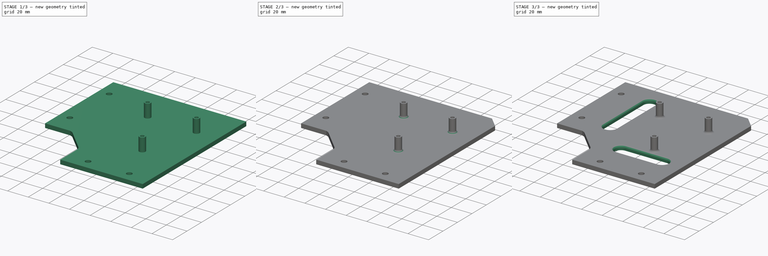
[diagram: build sequence overview — one tinted view per stage of 3, left to right]
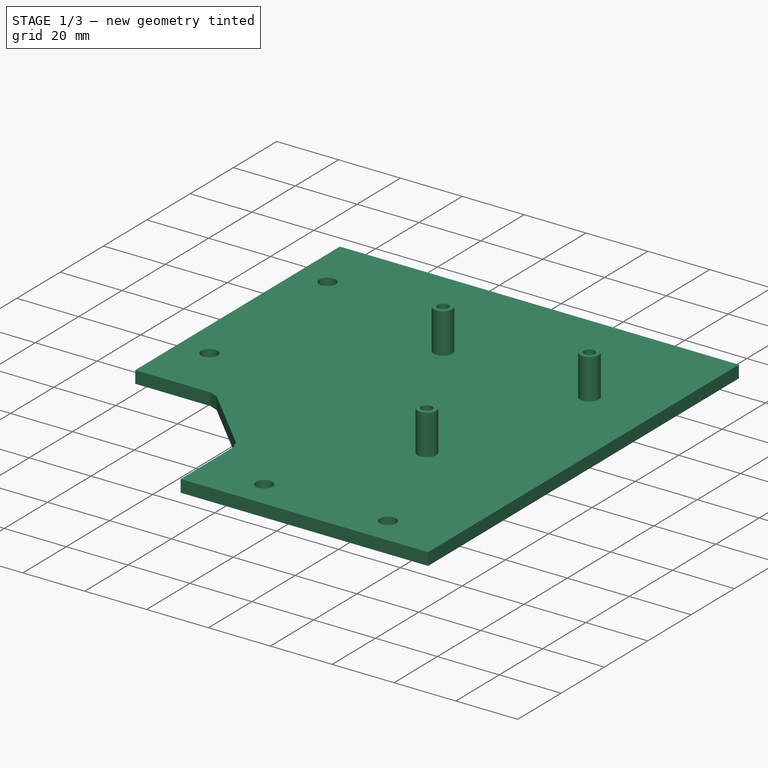
[diagram: stage 1 of 3 — iso view after this stage's code; geometry added in this stage tinted green]
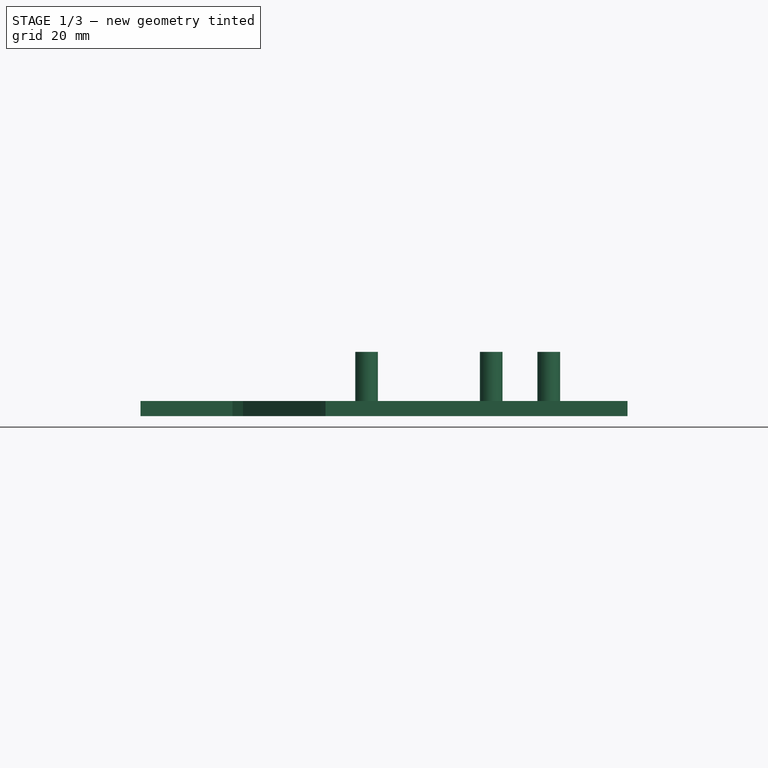
[diagram: stage 1 of 3 — front view after this stage's code; geometry added in this stage tinted green]
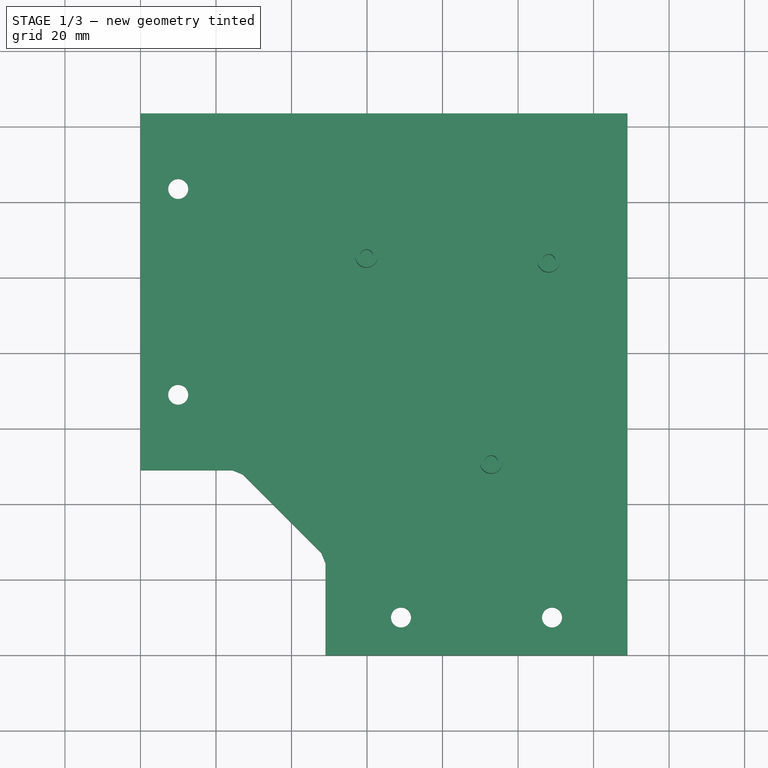
[diagram: stage 1 of 3 — top view after this stage's code; geometry added in this stage tinted green]
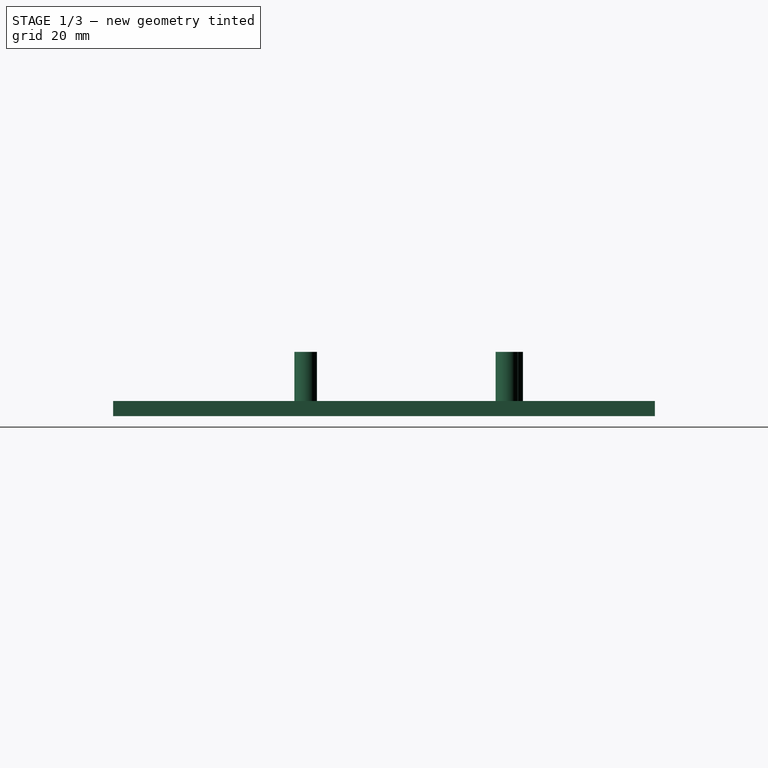
[diagram: stage 1 of 3 — right view after this stage's code; geometry added in this stage tinted green]
FCSTD DOCUMENT  (FreeCAD 1.0R39109 (Git))
Label: stm_mount
License: All rights reserved
LicenseURL: https://en.wikipedia.org/wiki/All_rights_reserved
objects: Sketcher::SketchObject×4, PartDesign::Pad×2, PartDesign::Fillet×2, PartDesign::Chamfer×1, PartDesign::Pocket×1, PartDesign::Body×1
note: 27 computed .brp shape members not serialized (recipe doc carries the construction recipe); baked Part::Feature solids carry a one-line shape summary decoded from their .brp

FEATURE [Sketcher::SketchObject] Sketch
  ArcFitTolerance = 1e-06
  AttachmentSupport = -> [XY_Plane]
  FullyConstrained = true
  MakeInternals = false
  MapMode = 5
  sketch-geometry (47):
    g0: LineSegment [constr] StartX=0 StartY=0 StartZ=0 EndX=49 EndY=0 EndZ=0
    g1: LineSegment [constr] StartX=0 StartY=0 StartZ=0 EndX=0 EndY=49 EndZ=0
    g2: LineSegment StartX=0 StartY=49 StartZ=0 EndX=24.3764 EndY=49 EndZ=0
    g3: LineSegment StartX=49 StartY=0 StartZ=0 EndX=49 EndY=24.3764 EndZ=0
    g4: LineSegment StartX=47.8519 StartY=27.1481 StartZ=0 EndX=27.1481 EndY=47.8519 EndZ=0
    g5: ArcOfCircle [constr] CenterX=24.3764 CenterY=45.0803 CenterZ=0 NormalX=0 NormalY=0 NormalZ=1 AngleXU=0 Radius=3.91969 StartAngle=0.785398 EndAngle=1.5708
    g6: GeomPoint [constr] X=26 Y=49 Z=0
    g7: LineSegment StartX=27.1481 StartY=47.8519 StartZ=0 EndX=24.3764 EndY=49 EndZ=0
    g8: ArcOfCircle [constr] CenterX=45.0803 CenterY=24.3764 CenterZ=0 NormalX=0 NormalY=0 NormalZ=1 AngleXU=0 Radius=3.91969 StartAngle=0 EndAngle=0.785398
    g9: GeomPoint [constr] X=49 Y=26 Z=0
    g10: LineSegment StartX=49 StartY=24.3764 StartZ=0 EndX=47.8519 EndY=27.1481 EndZ=0
    g11: LineSegment StartX=49 StartY=0 StartZ=0 EndX=129 EndY=0 EndZ=0
    g12: LineSegment [constr] StartX=0 StartY=0 StartZ=0 EndX=49 EndY=0 EndZ=0
    g13: LineSegment [constr] StartX=49 StartY=0 StartZ=0 EndX=49 EndY=49 EndZ=0
    g14: LineSegment [constr] StartX=49 StartY=49 StartZ=0 EndX=0 EndY=49 EndZ=0
    g15: LineSegment [constr] StartX=0 StartY=49 StartZ=0 EndX=0 EndY=0 EndZ=0
    g16: LineSegment [constr] StartX=49 StartY=49 StartZ=0 EndX=119 EndY=49 EndZ=0
    g17: LineSegment [constr] StartX=119 StartY=49 StartZ=0 EndX=119 EndY=133.5 EndZ=0
    g18: LineSegment [constr] StartX=119 StartY=133.5 StartZ=0 EndX=49 EndY=133.5 EndZ=0
    g19: LineSegment [constr] StartX=49 StartY=133.5 StartZ=0 EndX=49 EndY=49 EndZ=0
    g20: LineSegment [constr] StartX=119 StartY=133.5 StartZ=0 EndX=129 EndY=133.5 EndZ=0
    g21: LineSegment [constr] StartX=129 StartY=133.5 StartZ=0 EndX=129 EndY=143.5 EndZ=0
    g22: LineSegment [constr] StartX=129 StartY=143.5 StartZ=0 EndX=119 EndY=143.5 EndZ=0
    g23: LineSegment [constr] StartX=119 StartY=143.5 StartZ=0 EndX=119 EndY=133.5 EndZ=0
    g24: LineSegment StartX=129 StartY=143.5 StartZ=0 EndX=129 EndY=0 EndZ=0
    g25: LineSegment StartX=129 StartY=143.5 StartZ=0 EndX=0 EndY=143.5 EndZ=0
    g26: LineSegment StartX=0 StartY=143.5 StartZ=0 EndX=0 EndY=49 EndZ=0
    g27: LineSegment [constr] StartX=49 StartY=0 StartZ=0 EndX=69 EndY=0 EndZ=0
    g28: LineSegment [constr] StartX=69 StartY=0 StartZ=0 EndX=69 EndY=10 EndZ=0
    g29: LineSegment [constr] StartX=69 StartY=10 StartZ=0 EndX=49 EndY=10 EndZ=0
    g30: LineSegment [constr] StartX=49 StartY=10 StartZ=0 EndX=49 EndY=0 EndZ=0
    g31: LineSegment [constr] StartX=129 StartY=0 StartZ=0 EndX=129 EndY=10 EndZ=0
    g32: LineSegment [constr] StartX=129 StartY=10 StartZ=0 EndX=109 EndY=10 EndZ=0
    g33: LineSegment [constr] StartX=109 StartY=10 StartZ=0 EndX=109 EndY=0 EndZ=0
    g34: LineSegment [constr] StartX=109 StartY=0 StartZ=0 EndX=129 EndY=0 EndZ=0
    g35: LineSegment [constr] StartX=0 StartY=49 StartZ=0 EndX=10 EndY=49 EndZ=0
    g36: LineSegment [constr] StartX=10 StartY=49 StartZ=0 EndX=10 EndY=69 EndZ=0
    g37: LineSegment [constr] StartX=10 StartY=69 StartZ=0 EndX=0 EndY=69 EndZ=0
    g38: LineSegment [constr] StartX=0 StartY=69 StartZ=0 EndX=0 EndY=49 EndZ=0
    g39: LineSegment [constr] StartX=0 StartY=143.5 StartZ=0 EndX=0 EndY=123.5 EndZ=0
    g40: LineSegment [constr] StartX=0 StartY=123.5 StartZ=0 EndX=10 EndY=123.5 EndZ=0
    g41: LineSegment [constr] StartX=10 StartY=123.5 StartZ=0 EndX=10 EndY=143.5 EndZ=0
    g42: LineSegment [constr] StartX=10 StartY=143.5 StartZ=0 EndX=0 EndY=143.5 EndZ=0
    g43: Circle CenterX=10 CenterY=123.5 CenterZ=0 NormalX=0 NormalY=0 NormalZ=1 AngleXU=0 Radius=2.65
    g44: Circle CenterX=10 CenterY=69 CenterZ=0 NormalX=0 NormalY=0 NormalZ=1 AngleXU=0 Radius=2.65
    g45: Circle CenterX=69 CenterY=10 CenterZ=0 NormalX=0 NormalY=0 NormalZ=1 AngleXU=0 Radius=2.65
    g46: Circle CenterX=109 CenterY=10 CenterZ=0 NormalX=0 NormalY=0 NormalZ=1 AngleXU=0 Radius=2.65
  constraints (121):
    c: Distance(g0) = 49
    c: Coincident(g0,g-1)
    c: PointOnObject(g0,g-1)
    c: Distance(g1) = 49
    c: Coincident(g1,g0)
    c: PointOnObject(g1,g-2)
    c: Distance(g2,g6) = 26
    c: Coincident(g2,g1)
    c: Horizontal(g2)
    c: Distance(g3,g9) = 26
    c: Coincident(g3,g0)
    c: Vertical(g3)
    c: PointOnObject(g6,g4)
    c: PointOnObject(g6,g2)
    c: Tangent(g4,g5) = -1.5708
    c: Tangent(g2,g5) = 1.5708
    c: Coincident(g7,g4)
    c: Coincident(g7,g2)
    c: PointOnObject(g9,g3)
    c: PointOnObject(g9,g4)
    c: Tangent(g3,g8) = -1.5708
    c: Tangent(g4,g8) = -1.5708
    c: Coincident(g10,g3)
    c: Coincident(g10,g4)
    c: Distance(g7,g7) = 3
    c: Distance(g10,g10) = 3
    c: Distance(g11) = 80
    c: Coincident(g11,g0)
    c: PointOnObject(g11,g-1)
    c: Coincident(g12,g13)
    c: Coincident(g13,g14)
    c: Coincident(g14,g15)
    c: Coincident(g15,g12)
    c: Horizontal(g12)
    c: Horizontal(g14)
    c: Vertical(g13)
    c: Vertical(g15)
    c: Distance(g13,g15) = 49
    c: Distance(g12,g14) = 49
    c: Coincident(g12,g0)
    c: Coincident(g16,g17)
    c: Coincident(g17,g18)
    c: Coincident(g18,g19)
    c: Coincident(g19,g16)
    c: Horizontal(g16)
    c: Horizontal(g18)
    c: Vertical(g17)
    c: Vertical(g19)
    c: Distance(g17,g19) = 70
    c: Distance(g16,g18) = 84.5
    c: Coincident(g16,g13)
    c: Coincident(g20,g21)
    c: Coincident(g21,g22)
    c: Coincident(g22,g23)
    c: Coincident(g23,g20)
    c: Horizontal(g20)
    c: Horizontal(g22)
    c: Vertical(g21)
    c: Vertical(g23)
    c: Distance(g21,g23) = 10
    c: Distance(g20,g22) = 10
    c: Coincident(g20,g17)
    c: Coincident(g24,g21)
    c: Coincident(g24,g11)
    c: Coincident(g25,g21)
    c: PointOnObject(g25,g-2)
    c: Horizontal(g25)
    c: Coincident(g26,g25)
    c: Coincident(g26,g1)
    c: Coincident(g27,g28)
    c: Coincident(g28,g29)
    c: Coincident(g29,g30)
    c: Coincident(g30,g27)
    c: Horizontal(g27)
    c: Horizontal(g29)
    c: Vertical(g28)
    c: Vertical(g30)
    c: Distance(g28,g30) = 20
    c: Distance(g27,g29) = 10
    c: Coincident(g27,g0)
    c: Coincident(g31,g32)
    c: Coincident(g32,g33)
    c: Coincident(g33,g34)
    c: Coincident(g34,g31)
    c: Vertical(g31)
    c: Vertical(g33)
    c: Horizontal(g32)
    c: Horizontal(g34)
    c: Distance(g31,g33) = 20
    c: Distance(g32,g34) = 10
    c: Coincident(g31,g11)
    c: Coincident(g35,g36)
    c: Coincident(g36,g37)
    c: Coincident(g37,g38)
    c: Coincident(g38,g35)
    c: Horizontal(g35)
    c: Horizontal(g37)
    c: Vertical(g36)
    c: Vertical(g38)
    c: Distance(g36,g38) = 10
    c: Distance(g35,g37) = 20
    c: Coincident(g35,g1)
    c: Coincident(g39,g40)
    c: Coincident(g40,g41)
    c: Coincident(g41,g42)
    c: Coincident(g42,g39)
    c: Vertical(g39)
    c: Vertical(g41)
    c: Horizontal(g40)
    c: Horizontal(g42)
    c: Distance(g39,g41) = 10
    c: Distance(g40,g42) = 20
    c: Coincident(g39,g25)
    c: Diameter(g43) = 5.3
    c: Coincident(g43,g40)
    c: Diameter(g44) = 5.3
    c: Coincident(g44,g36)
    c: Diameter(g45) = 5.3
    c: Coincident(g45,g28)
    c: Diameter(g46) = 5.3
    c: Coincident(g46,g32)
FEATURE [PartDesign::Pad] Pad
  Direction = (0,0,1)
  Length = 4
  Length2 = 10
  Profile = -> Sketch
  ReferenceAxis = -> Sketch [N_Axis]
  Refine = true
  Reversed = true
  Suppressed = false
  Type = 0
FEATURE [Sketcher::SketchObject] Sketch001
  ArcFitTolerance = 1e-06
  AttachmentSupport = -> [Pad]
  FullyConstrained = true
  MakeInternals = false
  MapMode = 5
  sketch-geometry (65):
    g0: LineSegment [constr] StartX=0 StartY=0 StartZ=0 EndX=49 EndY=0 EndZ=0
    g1: LineSegment [constr] StartX=0 StartY=0 StartZ=0 EndX=0 EndY=49 EndZ=0
    g2: LineSegment [constr] StartX=0 StartY=49 StartZ=0 EndX=24.3764 EndY=49 EndZ=0
    g3: LineSegment [constr] StartX=49 StartY=0 StartZ=0 EndX=49 EndY=24.3764 EndZ=0
    g4: LineSegment [constr] StartX=47.8519 StartY=27.1481 StartZ=0 EndX=27.1481 EndY=47.8519 EndZ=0
    g5: ArcOfCircle [constr] CenterX=24.3764 CenterY=45.0803 CenterZ=0 NormalX=0 NormalY=0 NormalZ=1 AngleXU=0 Radius=3.91969 StartAngle=0.785398 EndAngle=1.5708
    g6: GeomPoint [constr] X=26 Y=49 Z=0
    g7: LineSegment [constr] StartX=27.1481 StartY=47.8519 StartZ=0 EndX=24.3764 EndY=49 EndZ=0
    g8: ArcOfCircle [constr] CenterX=45.0803 CenterY=24.3764 CenterZ=0 NormalX=0 NormalY=0 NormalZ=1 AngleXU=0 Radius=3.91969 StartAngle=0 EndAngle=0.785398
    g9: GeomPoint [constr] X=49 Y=26 Z=0
    g10: LineSegment [constr] StartX=49 StartY=24.3764 StartZ=0 EndX=47.8519 EndY=27.1481 EndZ=0
    g11: LineSegment [constr] StartX=49 StartY=0 StartZ=0 EndX=129 EndY=0 EndZ=0
    g12: LineSegment [constr] StartX=0 StartY=0 StartZ=0 EndX=49 EndY=0 EndZ=0
    g13: LineSegment [constr] StartX=49 StartY=0 StartZ=0 EndX=49 EndY=49 EndZ=0
    g14: LineSegment [constr] StartX=49 StartY=49 StartZ=0 EndX=0 EndY=49 EndZ=0
    g15: LineSegment [constr] StartX=0 StartY=49 StartZ=0 EndX=0 EndY=0 EndZ=0
    g16: LineSegment [constr] StartX=49 StartY=49 StartZ=0 EndX=119 EndY=49 EndZ=0
    g17: LineSegment [constr] StartX=119 StartY=49 StartZ=0 EndX=119 EndY=133.5 EndZ=0
    g18: LineSegment [constr] StartX=119 StartY=133.5 StartZ=0 EndX=49 EndY=133.5 EndZ=0
    g19: LineSegment [constr] StartX=49 StartY=133.5 StartZ=0 EndX=49 EndY=49 EndZ=0
    g20: LineSegment [constr] StartX=119 StartY=133.5 StartZ=0 EndX=129 EndY=133.5 EndZ=0
    g21: LineSegment [constr] StartX=129 StartY=133.5 StartZ=0 EndX=129 EndY=143.5 EndZ=0
    g22: LineSegment [constr] StartX=129 StartY=143.5 StartZ=0 EndX=119 EndY=143.5 EndZ=0
    g23: LineSegment [constr] StartX=119 StartY=143.5 StartZ=0 EndX=119 EndY=133.5 EndZ=0
    g24: LineSegment [constr] StartX=129 StartY=143.5 StartZ=0 EndX=129 EndY=0 EndZ=0
    g25: LineSegment [constr] StartX=129 StartY=143.5 StartZ=0 EndX=0 EndY=143.5 EndZ=0
    g26: LineSegment [constr] StartX=0 StartY=143.5 StartZ=0 EndX=0 EndY=49 EndZ=0
    g27: LineSegment [constr] StartX=49 StartY=0 StartZ=0 EndX=69 EndY=0 EndZ=0
    g28: LineSegment [constr] StartX=69 StartY=0 StartZ=0 EndX=69 EndY=10 EndZ=0
    g29: LineSegment [constr] StartX=69 StartY=10 StartZ=0 EndX=49 EndY=10 EndZ=0
    g30: LineSegment [constr] StartX=49 StartY=10 StartZ=0 EndX=49 EndY=0 EndZ=0
    g31: LineSegment [constr] StartX=129 StartY=0 StartZ=0 EndX=129 EndY=10 EndZ=0
    g32: LineSegment [constr] StartX=129 StartY=10 StartZ=0 EndX=109 EndY=10 EndZ=0
    g33: LineSegment [constr] StartX=109 StartY=10 StartZ=0 EndX=109 EndY=0 EndZ=0
    g34: LineSegment [constr] StartX=109 StartY=0 StartZ=0 EndX=129 EndY=0 EndZ=0
    g35: LineSegment [constr] StartX=0 StartY=49 StartZ=0 EndX=10 EndY=49 EndZ=0
    g36: LineSegment [constr] StartX=10 StartY=49 StartZ=0 EndX=10 EndY=69 EndZ=0
    g37: LineSegment [constr] StartX=10 StartY=69 StartZ=0 EndX=0 EndY=69 EndZ=0
    g38: LineSegment [constr] StartX=0 StartY=69 StartZ=0 EndX=0 EndY=49 EndZ=0
    g39: LineSegment [constr] StartX=0 StartY=143.5 StartZ=0 EndX=0 EndY=123.5 EndZ=0
    g40: LineSegment [constr] StartX=0 StartY=123.5 StartZ=0 EndX=10 EndY=123.5 EndZ=0
    g41: LineSegment [constr] StartX=10 StartY=123.5 StartZ=0 EndX=10 EndY=143.5 EndZ=0
    g42: LineSegment [constr] StartX=10 StartY=143.5 StartZ=0 EndX=0 EndY=143.5 EndZ=0
    g43: Circle [constr] CenterX=10 CenterY=123.5 CenterZ=0 NormalX=0 NormalY=0 NormalZ=1 AngleXU=0 Radius=2.65
    g44: Circle [constr] CenterX=10 CenterY=69 CenterZ=0 NormalX=0 NormalY=0 NormalZ=1 AngleXU=0 Radius=2.65
    g45: Circle [constr] CenterX=69 CenterY=10 CenterZ=0 NormalX=0 NormalY=0 NormalZ=1 AngleXU=0 Radius=2.65
    g46: Circle [constr] CenterX=109 CenterY=10 CenterZ=0 NormalX=0 NormalY=0 NormalZ=1 AngleXU=0 Radius=2.65
    g47: LineSegment [constr] StartX=49 StartY=133.5 StartZ=0 EndX=49 EndY=105.57 EndZ=0
    g48: LineSegment [constr] StartX=49 StartY=105.57 StartZ=0 EndX=59.87 EndY=105.57 EndZ=0
    g49: LineSegment [constr] StartX=59.87 StartY=105.57 StartZ=0 EndX=59.87 EndY=133.5 EndZ=0
    g50: LineSegment [constr] StartX=59.87 StartY=133.5 StartZ=0 EndX=49 EndY=133.5 EndZ=0
    g51: LineSegment [constr] StartX=119 StartY=133.5 StartZ=0 EndX=108.13 EndY=133.5 EndZ=0
    g52: LineSegment [constr] StartX=108.13 StartY=133.5 StartZ=0 EndX=108.13 EndY=104.3 EndZ=0
    g53: LineSegment [constr] StartX=108.13 StartY=104.3 StartZ=0 EndX=119 EndY=104.3 EndZ=0
    g54: LineSegment [constr] StartX=119 StartY=104.3 StartZ=0 EndX=119 EndY=133.5 EndZ=0
    g55: LineSegment [constr] StartX=119 StartY=49 StartZ=0 EndX=119 EndY=51 EndZ=0
    g56: LineSegment [constr] StartX=119 StartY=51 StartZ=0 EndX=92.89 EndY=51 EndZ=0
    g57: LineSegment [constr] StartX=92.89 StartY=51 StartZ=0 EndX=92.89 EndY=49 EndZ=0
    g58: LineSegment [constr] StartX=92.89 StartY=49 StartZ=0 EndX=119 EndY=49 EndZ=0
    g59: Circle CenterX=59.87 CenterY=105.57 CenterZ=0 NormalX=0 NormalY=0 NormalZ=1 AngleXU=0 Radius=1.75
    g60: Circle CenterX=108.13 CenterY=104.3 CenterZ=0 NormalX=0 NormalY=0 NormalZ=1 AngleXU=0 Radius=1.75
    g61: Circle CenterX=92.89 CenterY=51 CenterZ=0 NormalX=0 NormalY=0 NormalZ=1 AngleXU=0 Radius=1.75
    g62: Circle CenterX=59.87 CenterY=105.57 CenterZ=0 NormalX=0 NormalY=0 NormalZ=1 AngleXU=0 Radius=3
    g63: Circle CenterX=108.13 CenterY=104.3 CenterZ=0 NormalX=0 NormalY=0 NormalZ=1 AngleXU=0 Radius=3
    g64: Circle CenterX=92.89 CenterY=51 CenterZ=0 NormalX=0 NormalY=0 NormalZ=1 AngleXU=0 Radius=3
  constraints (166):
    c: Distance(g0) = 49
    c: Coincident(g0,g-1)
    c: PointOnObject(g0,g-1)
    c: Distance(g1) = 49
    c: Coincident(g1,g0)
    c: PointOnObject(g1,g-2)
    c: Distance(g2,g6) = 26
    c: Coincident(g2,g1)
    c: Horizontal(g2)
    c: Distance(g3,g9) = 26
    c: Coincident(g3,g0)
    c: Vertical(g3)
    c: PointOnObject(g6,g4)
    c: PointOnObject(g6,g2)
    c: Tangent(g4,g5) = -1.5708
    c: Tangent(g2,g5) = 1.5708
    c: Coincident(g7,g4)
    c: Coincident(g7,g2)
    c: PointOnObject(g9,g3)
    c: PointOnObject(g9,g4)
    c: Tangent(g3,g8) = -1.5708
    c: Tangent(g4,g8) = -1.5708
    c: Coincident(g10,g3)
    c: Coincident(g10,g4)
    c: Distance(g7,g7) = 3
    c: Distance(g10,g10) = 3
    c: Distance(g11) = 80
    c: Coincident(g11,g0)
    c: PointOnObject(g11,g-1)
    c: Coincident(g12,g13)
    c: Coincident(g13,g14)
    c: Coincident(g14,g15)
    c: Coincident(g15,g12)
    c: Horizontal(g12)
    c: Horizontal(g14)
    c: Vertical(g13)
    c: Vertical(g15)
    c: Distance(g13,g15) = 49
    c: Distance(g12,g14) = 49
    c: Coincident(g12,g0)
    c: Coincident(g16,g17)
    c: Coincident(g17,g18)
    c: Coincident(g18,g19)
    c: Coincident(g19,g16)
    c: Horizontal(g16)
    c: Horizontal(g18)
    c: Vertical(g17)
    c: Vertical(g19)
    c: Distance(g17,g19) = 70
    c: Distance(g16,g18) = 84.5
    c: Coincident(g16,g13)
    c: Coincident(g20,g21)
    c: Coincident(g21,g22)
    c: Coincident(g22,g23)
    c: Coincident(g23,g20)
    c: Horizontal(g20)
    c: Horizontal(g22)
    c: Vertical(g21)
    c: Vertical(g23)
    c: Distance(g21,g23) = 10
    c: Distance(g20,g22) = 10
    c: Coincident(g20,g17)
    c: Coincident(g24,g21)
    c: Coincident(g24,g11)
    c: Coincident(g25,g21)
    c: PointOnObject(g25,g-2)
    c: Horizontal(g25)
    c: Coincident(g26,g25)
    c: Coincident(g26,g1)
    c: Coincident(g27,g28)
    c: Coincident(g28,g29)
    c: Coincident(g29,g30)
    c: Coincident(g30,g27)
    c: Horizontal(g27)
    c: Horizontal(g29)
    c: Vertical(g28)
    c: Vertical(g30)
    c: Distance(g28,g30) = 20
    c: Distance(g27,g29) = 10
    c: Coincident(g27,g0)
    c: Coincident(g31,g32)
    c: Coincident(g32,g33)
    c: Coincident(g33,g34)
    c: Coincident(g34,g31)
    c: Vertical(g31)
    c: Vertical(g33)
    c: Horizontal(g32)
    c: Horizontal(g34)
    c: Distance(g31,g33) = 20
    c: Distance(g32,g34) = 10
    c: Coincident(g31,g11)
    c: Coincident(g35,g36)
    c: Coincident(g36,g37)
    c: Coincident(g37,g38)
    c: Coincident(g38,g35)
    c: Horizontal(g35)
    c: Horizontal(g37)
    c: Vertical(g36)
    c: Vertical(g38)
    c: Distance(g36,g38) = 10
    c: Distance(g35,g37) = 20
    c: Coincident(g35,g1)
    c: Coincident(g39,g40)
    c: Coincident(g40,g41)
    c: Coincident(g41,g42)
    c: Coincident(g42,g39)
    c: Vertical(g39)
    c: Vertical(g41)
    c: Horizontal(g40)
    c: Horizontal(g42)
    c: Distance(g39,g41) = 10
    c: Distance(g40,g42) = 20
    c: Coincident(g39,g25)
    c: Diameter(g43) = 5.3
    c: Coincident(g43,g40)
    c: Diameter(g44) = 5.3
    c: Coincident(g44,g36)
    c: Diameter(g45) = 5.3
    c: Coincident(g45,g28)
    c: Diameter(g46) = 5.3
    c: Coincident(g46,g32)
    c: Coincident(g47,g48)
    c: Coincident(g48,g49)
    c: Coincident(g49,g50)
    c: Coincident(g50,g47)
    c: Vertical(g47)
    c: Vertical(g49)
    c: Horizontal(g48)
    c: Horizontal(g50)
    c: Distance(g47,g49) = 10.87
    c: Distance(g48,g50) = 27.93
    c: Coincident(g47,g18)
    c: Coincident(g51,g52)
    c: Coincident(g52,g53)
    c: Coincident(g53,g54)
    c: Coincident(g54,g51)
    c: Horizontal(g51)
    c: Horizontal(g53)
    c: Vertical(g52)
    c: Vertical(g54)
    c: Distance(g52,g54) = 10.87
    c: Distance(g51,g53) = 29.2
    c: Coincident(g51,g17)
    c: Coincident(g55,g56)
    c: Coincident(g56,g57)
    c: Coincident(g57,g58)
    c: Coincident(g58,g55)
    c: Vertical(g55)
    c: Vertical(g57)
    c: Horizontal(g56)
    c: Horizontal(g58)
    c: Distance(g55,g57) = 26.11
    c: Distance(g56,g58) = 2
    c: Coincident(g55,g16)
    c: Diameter(g59) = 3.5
    c: Coincident(g59,g48)
    c: Diameter(g60) = 3.5
    c: Coincident(g60,g52)
    c: Diameter(g61) = 3.5
    c: Coincident(g61,g56)
    c: Diameter(g62) = 6
    c: Coincident(g62,g48)
    c: Diameter(g63) = 6
    c: Coincident(g63,g52)
    c: Diameter(g64) = 6
    c: Coincident(g64,g56)
FEATURE [PartDesign::Pad] Pad001
  BaseFeature = -> Pad
  Direction = (0,0,1)
  Length = 13
  Length2 = 10
  Profile = -> Sketch001
  ReferenceAxis = -> Sketch001 [N_Axis]
  Refine = true
  Suppressed = false
  Type = 0
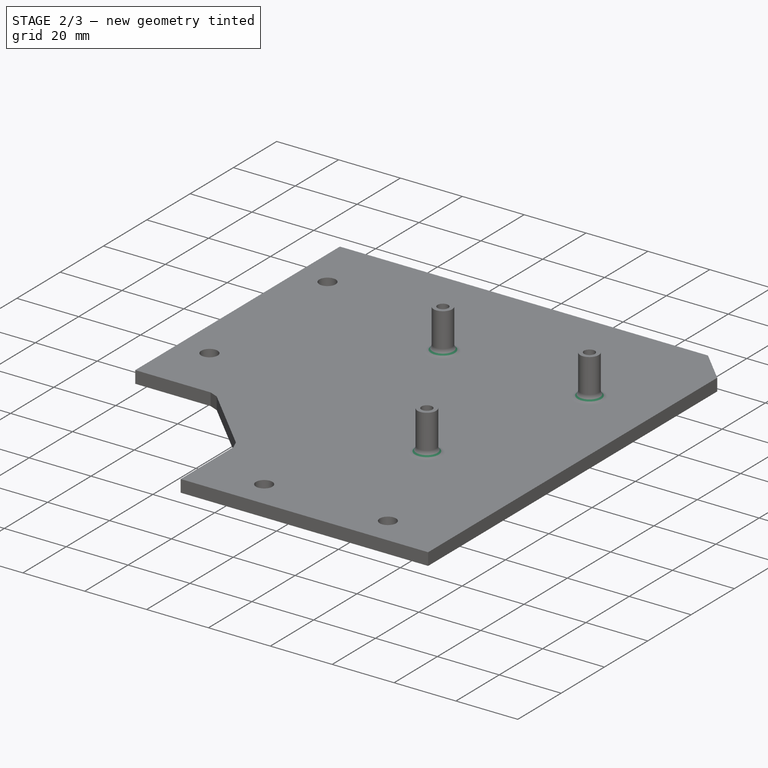
[diagram: stage 2 of 3 — iso view after this stage's code; geometry added in this stage tinted green]
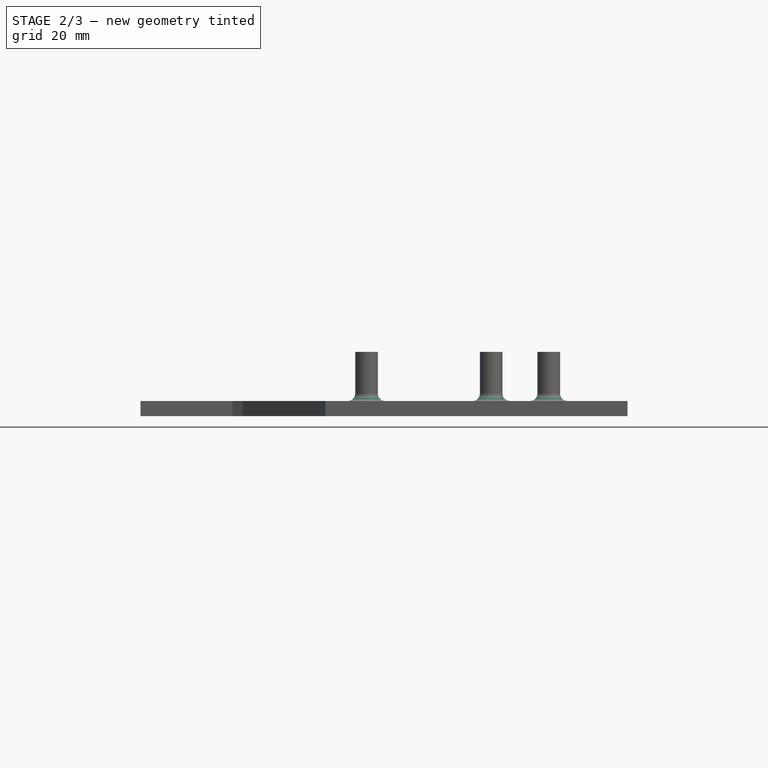
[diagram: stage 2 of 3 — front view after this stage's code; geometry added in this stage tinted green]
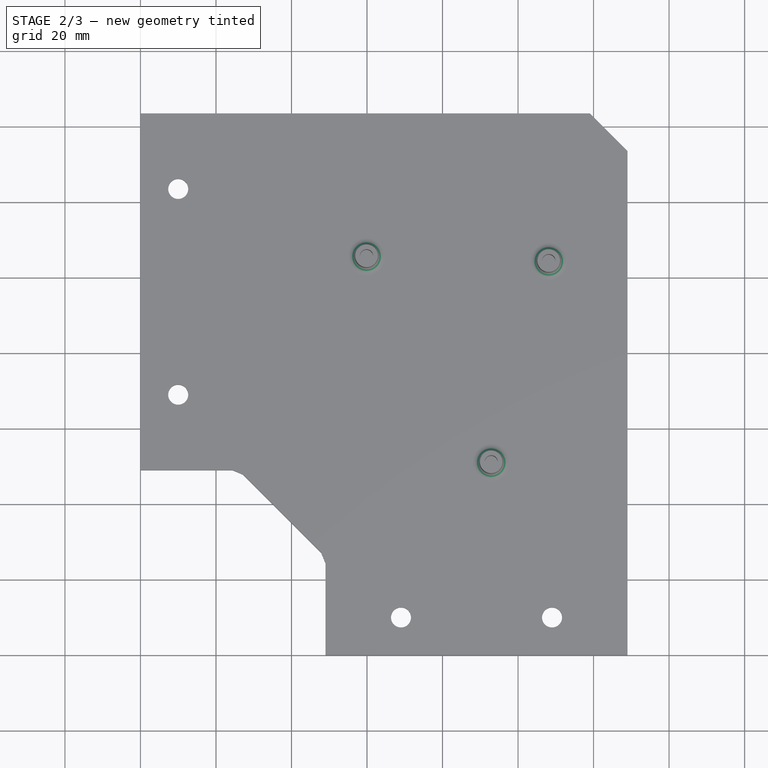
[diagram: stage 2 of 3 — top view after this stage's code; geometry added in this stage tinted green]
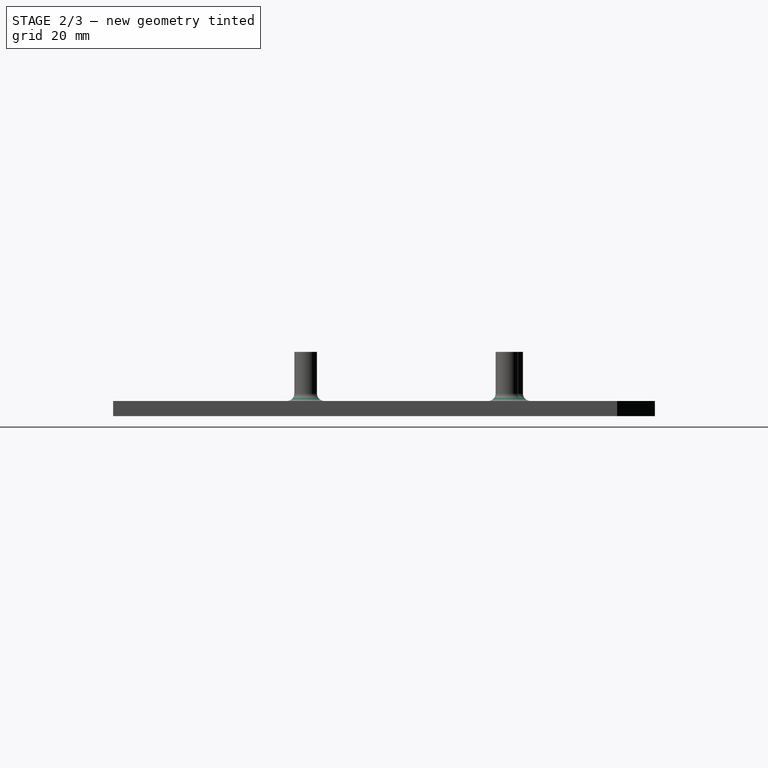
[diagram: stage 2 of 3 — right view after this stage's code; geometry added in this stage tinted green]
FEATURE [Sketcher::SketchObject] Sketch002
  ArcFitTolerance = 1e-06
  AttachmentSupport = -> [Pad001]
  FullyConstrained = true
  MakeInternals = false
  MapMode = 5
  sketch-geometry (65):
    g0: LineSegment [constr] StartX=0 StartY=0 StartZ=0 EndX=49 EndY=0 EndZ=0
    g1: LineSegment [constr] StartX=0 StartY=0 StartZ=0 EndX=0 EndY=49 EndZ=0
    g2: LineSegment [constr] StartX=0 StartY=49 StartZ=0 EndX=24.3764 EndY=49 EndZ=0
    g3: LineSegment [constr] StartX=49 StartY=0 StartZ=0 EndX=49 EndY=24.3764 EndZ=0
    g4: LineSegment [constr] StartX=47.8519 StartY=27.1481 StartZ=0 EndX=27.1481 EndY=47.8519 EndZ=0
    g5: ArcOfCircle [constr] CenterX=24.3764 CenterY=45.0803 CenterZ=0 NormalX=0 NormalY=0 NormalZ=1 AngleXU=0 Radius=3.91969 StartAngle=0.785398 EndAngle=1.5708
    g6: GeomPoint [constr] X=26 Y=49 Z=0
    g7: LineSegment [constr] StartX=27.1481 StartY=47.8519 StartZ=0 EndX=24.3764 EndY=49 EndZ=0
    g8: ArcOfCircle [constr] CenterX=45.0803 CenterY=24.3764 CenterZ=0 NormalX=0 NormalY=0 NormalZ=1 AngleXU=0 Radius=3.91969 StartAngle=0 EndAngle=0.785398
    g9: GeomPoint [constr] X=49 Y=26 Z=0
    g10: LineSegment [constr] StartX=49 StartY=24.3764 StartZ=0 EndX=47.8519 EndY=27.1481 EndZ=0
    g11: LineSegment [constr] StartX=49 StartY=0 StartZ=0 EndX=129 EndY=0 EndZ=0
    g12: LineSegment [constr] StartX=0 StartY=0 StartZ=0 EndX=49 EndY=0 EndZ=0
    g13: LineSegment [constr] StartX=49 StartY=0 StartZ=0 EndX=49 EndY=49 EndZ=0
    g14: LineSegment [constr] StartX=49 StartY=49 StartZ=0 EndX=0 EndY=49 EndZ=0
    g15: LineSegment [constr] StartX=0 StartY=49 StartZ=0 EndX=0 EndY=0 EndZ=0
    g16: LineSegment [constr] StartX=49 StartY=49 StartZ=0 EndX=119 EndY=49 EndZ=0
    g17: LineSegment [constr] StartX=119 StartY=49 StartZ=0 EndX=119 EndY=133.5 EndZ=0
    g18: LineSegment [constr] StartX=119 StartY=133.5 StartZ=0 EndX=49 EndY=133.5 EndZ=0
    g19: LineSegment [constr] StartX=49 StartY=133.5 StartZ=0 EndX=49 EndY=49 EndZ=0
    g20: LineSegment [constr] StartX=119 StartY=133.5 StartZ=0 EndX=129 EndY=133.5 EndZ=0
    g21: LineSegment [constr] StartX=129 StartY=133.5 StartZ=0 EndX=129 EndY=143.5 EndZ=0
    g22: LineSegment [constr] StartX=129 StartY=143.5 StartZ=0 EndX=119 EndY=143.5 EndZ=0
    g23: LineSegment [constr] StartX=119 StartY=143.5 StartZ=0 EndX=119 EndY=133.5 EndZ=0
    g24: LineSegment [constr] StartX=129 StartY=143.5 StartZ=0 EndX=129 EndY=0 EndZ=0
    g25: LineSegment [constr] StartX=129 StartY=143.5 StartZ=0 EndX=0 EndY=143.5 EndZ=0
    g26: LineSegment [constr] StartX=0 StartY=143.5 StartZ=0 EndX=0 EndY=49 EndZ=0
    g27: LineSegment [constr] StartX=49 StartY=0 StartZ=0 EndX=69 EndY=0 EndZ=0
    g28: LineSegment [constr] StartX=69 StartY=0 StartZ=0 EndX=69 EndY=10 EndZ=0
    g29: LineSegment [constr] StartX=69 StartY=10 StartZ=0 EndX=49 EndY=10 EndZ=0
    g30: LineSegment [constr] StartX=49 StartY=10 StartZ=0 EndX=49 EndY=0 EndZ=0
    g31: LineSegment [constr] StartX=129 StartY=0 StartZ=0 EndX=129 EndY=10 EndZ=0
    g32: LineSegment [constr] StartX=129 StartY=10 StartZ=0 EndX=109 EndY=10 EndZ=0
    g33: LineSegment [constr] StartX=109 StartY=10 StartZ=0 EndX=109 EndY=0 EndZ=0
    g34: LineSegment [constr] StartX=109 StartY=0 StartZ=0 EndX=129 EndY=0 EndZ=0
    g35: LineSegment [constr] StartX=0 StartY=49 StartZ=0 EndX=10 EndY=49 EndZ=0
    g36: LineSegment [constr] StartX=10 StartY=49 StartZ=0 EndX=10 EndY=69 EndZ=0
    g37: LineSegment [constr] StartX=10 StartY=69 StartZ=0 EndX=0 EndY=69 EndZ=0
    g38: LineSegment [constr] StartX=0 StartY=69 StartZ=0 EndX=0 EndY=49 EndZ=0
    g39: LineSegment [constr] StartX=0 StartY=143.5 StartZ=0 EndX=0 EndY=123.5 EndZ=0
    g40: LineSegment [constr] StartX=0 StartY=123.5 StartZ=0 EndX=10 EndY=123.5 EndZ=0
    g41: LineSegment [constr] StartX=10 StartY=123.5 StartZ=0 EndX=10 EndY=143.5 EndZ=0
    g42: LineSegment [constr] StartX=10 StartY=143.5 StartZ=0 EndX=0 EndY=143.5 EndZ=0
    g43: Circle [constr] CenterX=10 CenterY=123.5 CenterZ=0 NormalX=0 NormalY=0 NormalZ=1 AngleXU=0 Radius=2.65
    g44: Circle [constr] CenterX=10 CenterY=69 CenterZ=0 NormalX=0 NormalY=0 NormalZ=1 AngleXU=0 Radius=2.65
    g45: Circle [constr] CenterX=69 CenterY=10 CenterZ=0 NormalX=0 NormalY=0 NormalZ=1 AngleXU=0 Radius=2.65
    g46: Circle [constr] CenterX=109 CenterY=10 CenterZ=0 NormalX=0 NormalY=0 NormalZ=1 AngleXU=0 Radius=2.65
    g47: LineSegment [constr] StartX=49 StartY=133.5 StartZ=0 EndX=49 EndY=105.57 EndZ=0
    g48: LineSegment [constr] StartX=49 StartY=105.57 StartZ=0 EndX=59.87 EndY=105.57 EndZ=0
    g49: LineSegment [constr] StartX=59.87 StartY=105.57 StartZ=0 EndX=59.87 EndY=133.5 EndZ=0
    g50: LineSegment [constr] StartX=59.87 StartY=133.5 StartZ=0 EndX=49 EndY=133.5 EndZ=0
    g51: LineSegment [constr] StartX=119 StartY=133.5 StartZ=0 EndX=108.13 EndY=133.5 EndZ=0
    g52: LineSegment [constr] StartX=108.13 StartY=133.5 StartZ=0 EndX=108.13 EndY=104.3 EndZ=0
    g53: LineSegment [constr] StartX=108.13 StartY=104.3 StartZ=0 EndX=119 EndY=104.3 EndZ=0
    g54: LineSegment [constr] StartX=119 StartY=104.3 StartZ=0 EndX=119 EndY=133.5 EndZ=0
    g55: LineSegment [constr] StartX=119 StartY=49 StartZ=0 EndX=119 EndY=51 EndZ=0
    g56: LineSegment [constr] StartX=119 StartY=51 StartZ=0 EndX=92.89 EndY=51 EndZ=0
    g57: LineSegment [constr] StartX=92.89 StartY=51 StartZ=0 EndX=92.89 EndY=49 EndZ=0
    g58: LineSegment [constr] StartX=92.89 StartY=49 StartZ=0 EndX=119 EndY=49 EndZ=0
    g59: Circle [constr] CenterX=59.87 CenterY=105.57 CenterZ=0 NormalX=0 NormalY=0 NormalZ=1 AngleXU=0 Radius=1.75
    g60: Circle [constr] CenterX=108.13 CenterY=104.3 CenterZ=0 NormalX=0 NormalY=0 NormalZ=1 AngleXU=0 Radius=1.75
    g61: Circle [constr] CenterX=92.89 CenterY=51 CenterZ=0 NormalX=0 NormalY=0 NormalZ=1 AngleXU=0 Radius=1.75
    g62: Circle [constr] CenterX=59.87 CenterY=105.57 CenterZ=0 NormalX=0 NormalY=0 NormalZ=1 AngleXU=0 Radius=3
    g63: Circle [constr] CenterX=108.13 CenterY=104.3 CenterZ=0 NormalX=0 NormalY=0 NormalZ=1 AngleXU=0 Radius=3
    g64: Circle [constr] CenterX=92.89 CenterY=51 CenterZ=0 NormalX=0 NormalY=0 NormalZ=1 AngleXU=0 Radius=3
  constraints (166):
    c: Distance(g0) = 49
    c: Coincident(g0,g-1)
    c: PointOnObject(g0,g-1)
    c: Distance(g1) = 49
    c: Coincident(g1,g0)
    c: PointOnObject(g1,g-2)
    c: Distance(g2,g6) = 26
    c: Coincident(g2,g1)
    c: Horizontal(g2)
    c: Distance(g3,g9) = 26
    c: Coincident(g3,g0)
    c: Vertical(g3)
    c: PointOnObject(g6,g4)
    c: PointOnObject(g6,g2)
    c: Tangent(g4,g5) = -1.5708
    c: Tangent(g2,g5) = 1.5708
    c: Coincident(g7,g4)
    c: Coincident(g7,g2)
    c: PointOnObject(g9,g3)
    c: PointOnObject(g9,g4)
    c: Tangent(g3,g8) = -1.5708
    c: Tangent(g4,g8) = -1.5708
    c: Coincident(g10,g3)
    c: Coincident(g10,g4)
    c: Distance(g7,g7) = 3
    c: Distance(g10,g10) = 3
    c: Distance(g11) = 80
    c: Coincident(g11,g0)
    c: PointOnObject(g11,g-1)
    c: Coincident(g12,g13)
    c: Coincident(g13,g14)
    c: Coincident(g14,g15)
    c: Coincident(g15,g12)
    c: Horizontal(g12)
    c: Horizontal(g14)
    c: Vertical(g13)
    c: Vertical(g15)
    c: Distance(g13,g15) = 49
    c: Distance(g12,g14) = 49
    c: Coincident(g12,g0)
    c: Coincident(g16,g17)
    c: Coincident(g17,g18)
    c: Coincident(g18,g19)
    c: Coincident(g19,g16)
    c: Horizontal(g16)
    c: Horizontal(g18)
    c: Vertical(g17)
    c: Vertical(g19)
    c: Distance(g17,g19) = 70
    c: Distance(g16,g18) = 84.5
    c: Coincident(g16,g13)
    c: Coincident(g20,g21)
    c: Coincident(g21,g22)
    c: Coincident(g22,g23)
    c: Coincident(g23,g20)
    c: Horizontal(g20)
    c: Horizontal(g22)
    c: Vertical(g21)
    c: Vertical(g23)
    c: Distance(g21,g23) = 10
    c: Distance(g20,g22) = 10
    c: Coincident(g20,g17)
    c: Coincident(g24,g21)
    c: Coincident(g24,g11)
    c: Coincident(g25,g21)
    c: PointOnObject(g25,g-2)
    c: Horizontal(g25)
    c: Coincident(g26,g25)
    c: Coincident(g26,g1)
    c: Coincident(g27,g28)
    c: Coincident(g28,g29)
    c: Coincident(g29,g30)
    c: Coincident(g30,g27)
    c: Horizontal(g27)
    c: Horizontal(g29)
    c: Vertical(g28)
    c: Vertical(g30)
    c: Distance(g28,g30) = 20
    c: Distance(g27,g29) = 10
    c: Coincident(g27,g0)
    c: Coincident(g31,g32)
    c: Coincident(g32,g33)
    c: Coincident(g33,g34)
    c: Coincident(g34,g31)
    c: Vertical(g31)
    c: Vertical(g33)
    c: Horizontal(g32)
    c: Horizontal(g34)
    c: Distance(g31,g33) = 20
    c: Distance(g32,g34) = 10
    c: Coincident(g31,g11)
    c: Coincident(g35,g36)
    c: Coincident(g36,g37)
    c: Coincident(g37,g38)
    c: Coincident(g38,g35)
    c: Horizontal(g35)
    c: Horizontal(g37)
    c: Vertical(g36)
    c: Vertical(g38)
    c: Distance(g36,g38) = 10
    c: Distance(g35,g37) = 20
    c: Coincident(g35,g1)
    c: Coincident(g39,g40)
    c: Coincident(g40,g41)
    c: Coincident(g41,g42)
    c: Coincident(g42,g39)
    c: Vertical(g39)
    c: Vertical(g41)
    c: Horizontal(g40)
    c: Horizontal(g42)
    c: Distance(g39,g41) = 10
    c: Distance(g40,g42) = 20
    c: Coincident(g39,g25)
    c: Diameter(g43) = 5.3
    c: Coincident(g43,g40)
    c: Diameter(g44) = 5.3
    c: Coincident(g44,g36)
    c: Diameter(g45) = 5.3
    c: Coincident(g45,g28)
    c: Diameter(g46) = 5.3
    c: Coincident(g46,g32)
    c: Coincident(g47,g48)
    c: Coincident(g48,g49)
    c: Coincident(g49,g50)
    c: Coincident(g50,g47)
    c: Vertical(g47)
    c: Vertical(g49)
    c: Horizontal(g48)
    c: Horizontal(g50)
    c: Distance(g47,g49) = 10.87
    c: Distance(g48,g50) = 27.93
    c: Coincident(g47,g18)
    c: Coincident(g51,g52)
    c: Coincident(g52,g53)
    c: Coincident(g53,g54)
    c: Coincident(g54,g51)
    c: Horizontal(g51)
    c: Horizontal(g53)
    c: Vertical(g52)
    c: Vertical(g54)
    c: Distance(g52,g54) = 10.87
    c: Distance(g51,g53) = 29.2
    c: Coincident(g51,g17)
    c: Coincident(g55,g56)
    c: Coincident(g56,g57)
    c: Coincident(g57,g58)
    c: Coincident(g58,g55)
    c: Vertical(g55)
    c: Vertical(g57)
    c: Horizontal(g56)
    c: Horizontal(g58)
    c: Distance(g55,g57) = 26.11
    c: Distance(g56,g58) = 2
    c: Coincident(g55,g16)
    c: Diameter(g59) = 3.5
    c: Coincident(g59,g48)
    c: Diameter(g60) = 3.5
    c: Coincident(g60,g52)
    c: Diameter(g61) = 3.5
    c: Coincident(g61,g56)
    c: Diameter(g62) = 6
    c: Coincident(g62,g48)
    c: Diameter(g63) = 6
    c: Coincident(g63,g52)
    c: Diameter(g64) = 6
    c: Coincident(g64,g56)
FEATURE [PartDesign::Chamfer] Chamfer
  Angle = 45
  Base = -> Pad001 [Edge1]
  BaseFeature = -> Pad001
  ChamferType = 0
  FlipDirection = false
  Refine = true
  Size = 10
  Size2 = 1
  SupportTransform = false
  Suppressed = false
  UseAllEdges = false
FEATURE [Sketcher::SketchObject] Sketch003
  ArcFitTolerance = 1e-06
  AttachmentSupport = -> [Chamfer]
  FullyConstrained = true
  MakeInternals = false
  MapMode = 5
  sketch-geometry (89):
    g0: LineSegment [constr] StartX=0 StartY=0 StartZ=0 EndX=49 EndY=0 EndZ=0
    g1: LineSegment [constr] StartX=0 StartY=0 StartZ=0 EndX=0 EndY=49 EndZ=0
    g2: LineSegment [constr] StartX=0 StartY=49 StartZ=0 EndX=24.3764 EndY=49 EndZ=0
    g3: LineSegment [constr] StartX=49 StartY=0 StartZ=0 EndX=49 EndY=24.3764 EndZ=0
    g4: LineSegment [constr] StartX=47.8519 StartY=27.1481 StartZ=0 EndX=27.1481 EndY=47.8519 EndZ=0
    g5: ArcOfCircle [constr] CenterX=24.3764 CenterY=45.0803 CenterZ=0 NormalX=0 NormalY=0 NormalZ=1 AngleXU=0 Radius=3.91969 StartAngle=0.785398 EndAngle=1.5708
    g6: GeomPoint [constr] X=26 Y=49 Z=0
    g7: LineSegment [constr] StartX=27.1481 StartY=47.8519 StartZ=0 EndX=24.3764 EndY=49 EndZ=0
    g8: ArcOfCircle [constr] CenterX=45.0803 CenterY=24.3764 CenterZ=0 NormalX=0 NormalY=0 NormalZ=1 AngleXU=0 Radius=3.91969 StartAngle=0 EndAngle=0.785398
    g9: GeomPoint [constr] X=49 Y=26 Z=0
    g10: LineSegment [constr] StartX=49 StartY=24.3764 StartZ=0 EndX=47.8519 EndY=27.1481 EndZ=0
    g11: LineSegment [constr] StartX=49 StartY=0 StartZ=0 EndX=129 EndY=0 EndZ=0
    g12: LineSegment [constr] StartX=0 StartY=0 StartZ=0 EndX=49 EndY=0 EndZ=0
    g13: LineSegment [constr] StartX=49 StartY=0 StartZ=0 EndX=49 EndY=49 EndZ=0
    g14: LineSegment [constr] StartX=49 StartY=49 StartZ=0 EndX=0 EndY=49 EndZ=0
    g15: LineSegment [constr] StartX=0 StartY=49 StartZ=0 EndX=0 EndY=0 EndZ=0
    g16: LineSegment [constr] StartX=49 StartY=49 StartZ=0 EndX=119 EndY=49 EndZ=0
    g17: LineSegment [constr] StartX=119 StartY=49 StartZ=0 EndX=119 EndY=133.5 EndZ=0
    g18: LineSegment [constr] StartX=119 StartY=133.5 StartZ=0 EndX=49 EndY=133.5 EndZ=0
    g19: LineSegment [constr] StartX=49 StartY=133.5 StartZ=0 EndX=49 EndY=49 EndZ=0
    g20: LineSegment [constr] StartX=119 StartY=133.5 StartZ=0 EndX=129 EndY=133.5 EndZ=0
    g21: LineSegment [constr] StartX=129 StartY=133.5 StartZ=0 EndX=129 EndY=143.5 EndZ=0
    g22: LineSegment [constr] StartX=129 StartY=143.5 StartZ=0 EndX=119 EndY=143.5 EndZ=0
    g23: LineSegment [constr] StartX=119 StartY=143.5 StartZ=0 EndX=119 EndY=133.5 EndZ=0
    g24: LineSegment [constr] StartX=129 StartY=143.5 StartZ=0 EndX=129 EndY=0 EndZ=0
    g25: LineSegment [constr] StartX=129 StartY=143.5 StartZ=0 EndX=0 EndY=143.5 EndZ=0
    g26: LineSegment [constr] StartX=0 StartY=143.5 StartZ=0 EndX=0 EndY=49 EndZ=0
    g27: LineSegment [constr] StartX=49 StartY=0 StartZ=0 EndX=69 EndY=0 EndZ=0
    g28: LineSegment [constr] StartX=69 StartY=0 StartZ=0 EndX=69 EndY=10 EndZ=0
    g29: LineSegment [constr] StartX=69 StartY=10 StartZ=0 EndX=49 EndY=10 EndZ=0
    g30: LineSegment [constr] StartX=49 StartY=10 StartZ=0 EndX=49 EndY=0 EndZ=0
    g31: LineSegment [constr] StartX=129 StartY=0 StartZ=0 EndX=129 EndY=10 EndZ=0
    g32: LineSegment [constr] StartX=129 StartY=10 StartZ=0 EndX=109 EndY=10 EndZ=0
    g33: LineSegment [constr] StartX=109 StartY=10 StartZ=0 EndX=109 EndY=0 EndZ=0
    g34: LineSegment [constr] StartX=109 StartY=0 StartZ=0 EndX=129 EndY=0 EndZ=0
    g35: LineSegment [constr] StartX=0 StartY=49 StartZ=0 EndX=10 EndY=49 EndZ=0
    g36: LineSegment [constr] StartX=10 StartY=49 StartZ=0 EndX=10 EndY=69 EndZ=0
    g37: LineSegment [constr] StartX=10 StartY=69 StartZ=0 EndX=0 EndY=69 EndZ=0
    g38: LineSegment [constr] StartX=0 StartY=69 StartZ=0 EndX=0 EndY=49 EndZ=0
    g39: LineSegment [constr] StartX=0 StartY=143.5 StartZ=0 EndX=0 EndY=123.5 EndZ=0
    g40: LineSegment [constr] StartX=0 StartY=123.5 StartZ=0 EndX=10 EndY=123.5 EndZ=0
    g41: LineSegment [constr] StartX=10 StartY=123.5 StartZ=0 EndX=10 EndY=143.5 EndZ=0
    g42: LineSegment [constr] StartX=10 StartY=143.5 StartZ=0 EndX=0 EndY=143.5 EndZ=0
    g43: Circle [constr] CenterX=10 CenterY=123.5 CenterZ=0 NormalX=0 NormalY=0 NormalZ=1 AngleXU=0 Radius=2.65
    g44: Circle [constr] CenterX=10 CenterY=69 CenterZ=0 NormalX=0 NormalY=0 NormalZ=1 AngleXU=0 Radius=2.65
    g45: Circle [constr] CenterX=69 CenterY=10 CenterZ=0 NormalX=0 NormalY=0 NormalZ=1 AngleXU=0 Radius=2.65
    g46: Circle [constr] CenterX=109 CenterY=10 CenterZ=0 NormalX=0 NormalY=0 NormalZ=1 AngleXU=0 Radius=2.65
    g47: LineSegment [constr] StartX=49 StartY=133.5 StartZ=0 EndX=49 EndY=105.57 EndZ=0
    g48: LineSegment [constr] StartX=49 StartY=105.57 StartZ=0 EndX=59.87 EndY=105.57 EndZ=0
    g49: LineSegment [constr] StartX=59.87 StartY=105.57 StartZ=0 EndX=59.87 EndY=133.5 EndZ=0
    g50: LineSegment [constr] StartX=59.87 StartY=133.5 StartZ=0 EndX=49 EndY=133.5 EndZ=0
    g51: LineSegment [constr] StartX=119 StartY=133.5 StartZ=0 EndX=108.13 EndY=133.5 EndZ=0
    g52: LineSegment [constr] StartX=108.13 StartY=133.5 StartZ=0 EndX=108.13 EndY=104.3 EndZ=0
    g53: LineSegment [constr] StartX=108.13 StartY=104.3 StartZ=0 EndX=119 EndY=104.3 EndZ=0
    g54: LineSegment [constr] StartX=119 StartY=104.3 StartZ=0 EndX=119 EndY=133.5 EndZ=0
    g55: LineSegment [constr] StartX=119 StartY=49 StartZ=0 EndX=119 EndY=51 EndZ=0
    g56: LineSegment [constr] StartX=119 StartY=51 StartZ=0 EndX=92.89 EndY=51 EndZ=0
    g57: LineSegment [constr] StartX=92.89 StartY=51 StartZ=0 EndX=92.89 EndY=49 EndZ=0
    g58: LineSegment [constr] StartX=92.89 StartY=49 StartZ=0 EndX=119 EndY=49 EndZ=0
    g59: Circle [constr] CenterX=59.87 CenterY=105.57 CenterZ=0 NormalX=0 NormalY=0 NormalZ=1 AngleXU=0 Radius=1.75
    g60: Circle [constr] CenterX=108.13 CenterY=104.3 CenterZ=0 NormalX=0 NormalY=0 NormalZ=1 AngleXU=0 Radius=1.75
    g61: Circle [constr] CenterX=92.89 CenterY=51 CenterZ=0 NormalX=0 NormalY=0 NormalZ=1 AngleXU=0 Radius=1.75
    g62: Circle [constr] CenterX=59.87 CenterY=105.57 CenterZ=0 NormalX=0 NormalY=0 NormalZ=1 AngleXU=0 Radius=3
    g63: Circle [constr] CenterX=108.13 CenterY=104.3 CenterZ=0 NormalX=0 NormalY=0 NormalZ=1 AngleXU=0 Radius=3
    g64: Circle [constr] CenterX=92.89 CenterY=51 CenterZ=0 NormalX=0 NormalY=0 NormalZ=1 AngleXU=0 Radius=3
    g65: LineSegment [constr] StartX=0 StartY=143.5 StartZ=0 EndX=0 EndY=49 EndZ=0
    g66: LineSegment [constr] StartX=0 StartY=49 StartZ=0 EndX=26 EndY=49 EndZ=0
    g67: LineSegment [constr] StartX=26 StartY=49 StartZ=0 EndX=26 EndY=143.5 EndZ=0
    g68: LineSegment [constr] StartX=26 StartY=143.5 StartZ=0 EndX=0 EndY=143.5 EndZ=0
    g69: LineSegment [constr] StartX=26 StartY=143.5 StartZ=0 EndX=26 EndY=123.5 EndZ=0
    g70: LineSegment [constr] StartX=26 StartY=123.5 StartZ=0 EndX=37.5 EndY=123.5 EndZ=0
    g71: LineSegment [constr] StartX=37.5 StartY=123.5 StartZ=0 EndX=37.5 EndY=143.5 EndZ=0
    g72: LineSegment [constr] StartX=37.5 StartY=143.5 StartZ=0 EndX=26 EndY=143.5 EndZ=0
    g73: LineSegment [constr] StartX=26 StartY=49 StartZ=0 EndX=37.5 EndY=49 EndZ=0
    g74: LineSegment [constr] StartX=37.5 StartY=49 StartZ=0 EndX=37.5 EndY=69 EndZ=0
    g75: LineSegment [constr] StartX=37.5 StartY=69 StartZ=0 EndX=26 EndY=69 EndZ=0
    g76: LineSegment [constr] StartX=26 StartY=69 StartZ=0 EndX=26 EndY=49 EndZ=0
    g77: ArcOfCircle CenterX=37.5 CenterY=69 CenterZ=0 NormalX=0 NormalY=0 NormalZ=1 AngleXU=0 Radius=6 StartAngle=3.14159 EndAngle=6.28319
    g78: ArcOfCircle CenterX=37.5 CenterY=123.5 CenterZ=0 NormalX=0 NormalY=0 NormalZ=1 AngleXU=0 Radius=6 StartAngle=0 EndAngle=3.14159
    g79: LineSegment StartX=31.5 StartY=69 StartZ=0 EndX=31.5 EndY=123.5 EndZ=0
    g80: LineSegment StartX=43.5 StartY=69 StartZ=0 EndX=43.5 EndY=123.5 EndZ=0
    g81: LineSegment [constr] StartX=49 StartY=49 StartZ=0 EndX=49 EndY=39 EndZ=0
    g82: LineSegment [constr] StartX=49 StartY=39 StartZ=0 EndX=69 EndY=39 EndZ=0
    g83: LineSegment [constr] StartX=69 StartY=39 StartZ=0 EndX=69 EndY=49 EndZ=0
    g84: LineSegment [constr] StartX=69 StartY=49 StartZ=0 EndX=49 EndY=49 EndZ=0
    g85: ArcOfCircle CenterX=69 CenterY=39 CenterZ=0 NormalX=0 NormalY=0 NormalZ=1 AngleXU=0 Radius=6 StartAngle=1.5708 EndAngle=4.71239
    g86: ArcOfCircle CenterX=109 CenterY=39 CenterZ=0 NormalX=0 NormalY=0 NormalZ=1 AngleXU=0 Radius=6 StartAngle=4.71239 EndAngle=7.85398
    g87: LineSegment StartX=69 StartY=45 StartZ=0 EndX=109 EndY=45 EndZ=0
    g88: LineSegment StartX=69 StartY=33 StartZ=0 EndX=109 EndY=33 EndZ=0
  constraints (226):
    c: Distance(g0) = 49
    c: Coincident(g0,g-1)
    c: PointOnObject(g0,g-1)
    c: Distance(g1) = 49
    c: Coincident(g1,g0)
    c: PointOnObject(g1,g-2)
    c: Distance(g2,g6) = 26
    c: Coincident(g2,g1)
    c: Horizontal(g2)
    c: Distance(g3,g9) = 26
    c: Coincident(g3,g0)
    c: Vertical(g3)
    c: PointOnObject(g6,g4)
    c: PointOnObject(g6,g2)
    c: Tangent(g4,g5) = -1.5708
    c: Tangent(g2,g5) = 1.5708
    c: Coincident(g7,g4)
    c: Coincident(g7,g2)
    c: PointOnObject(g9,g3)
    c: PointOnObject(g9,g4)
    c: Tangent(g3,g8) = -1.5708
    c: Tangent(g4,g8) = -1.5708
    c: Coincident(g10,g3)
    c: Coincident(g10,g4)
    c: Distance(g7,g7) = 3
    c: Distance(g10,g10) = 3
    c: Distance(g11) = 80
    c: Coincident(g11,g0)
    c: PointOnObject(g11,g-1)
    c: Coincident(g12,g13)
    c: Coincident(g13,g14)
    c: Coincident(g14,g15)
    c: Coincident(g15,g12)
    c: Horizontal(g12)
    c: Horizontal(g14)
    c: Vertical(g13)
    c: Vertical(g15)
    c: Distance(g13,g15) = 49
    c: Distance(g12,g14) = 49
    c: Coincident(g12,g0)
    c: Coincident(g16,g17)
    c: Coincident(g17,g18)
    c: Coincident(g18,g19)
    c: Coincident(g19,g16)
    c: Horizontal(g16)
    c: Horizontal(g18)
    c: Vertical(g17)
    c: Vertical(g19)
    c: Distance(g17,g19) = 70
    c: Distance(g16,g18) = 84.5
    c: Coincident(g16,g13)
    c: Coincident(g20,g21)
    c: Coincident(g21,g22)
    c: Coincident(g22,g23)
    c: Coincident(g23,g20)
    c: Horizontal(g20)
    c: Horizontal(g22)
    c: Vertical(g21)
    c: Vertical(g23)
    c: Distance(g21,g23) = 10
    c: Distance(g20,g22) = 10
    c: Coincident(g20,g17)
    c: Coincident(g24,g21)
    c: Coincident(g24,g11)
    c: Coincident(g25,g21)
    c: PointOnObject(g25,g-2)
    c: Horizontal(g25)
    c: Coincident(g26,g25)
    c: Coincident(g26,g1)
    c: Coincident(g27,g28)
    c: Coincident(g28,g29)
    c: Coincident(g29,g30)
    c: Coincident(g30,g27)
    c: Horizontal(g27)
    c: Horizontal(g29)
    c: Vertical(g28)
    c: Vertical(g30)
    c: Distance(g28,g30) = 20
    c: Distance(g27,g29) = 10
    c: Coincident(g27,g0)
    c: Coincident(g31,g32)
    c: Coincident(g32,g33)
    c: Coincident(g33,g34)
    c: Coincident(g34,g31)
    c: Vertical(g31)
    c: Vertical(g33)
    c: Horizontal(g32)
    c: Horizontal(g34)
    c: Distance(g31,g33) = 20
    c: Distance(g32,g34) = 10
    c: Coincident(g31,g11)
    c: Coincident(g35,g36)
    c: Coincident(g36,g37)
    c: Coincident(g37,g38)
    c: Coincident(g38,g35)
    c: Horizontal(g35)
    c: Horizontal(g37)
    c: Vertical(g36)
    c: Vertical(g38)
    c: Distance(g36,g38) = 10
    c: Distance(g35,g37) = 20
    c: Coincident(g35,g1)
    c: Coincident(g39,g40)
    c: Coincident(g40,g41)
    c: Coincident(g41,g42)
    c: Coincident(g42,g39)
    c: Vertical(g39)
    c: Vertical(g41)
    c: Horizontal(g40)
    c: Horizontal(g42)
    c: Distance(g39,g41) = 10
    c: Distance(g40,g42) = 20
    c: Coincident(g39,g25)
    c: Diameter(g43) = 5.3
    c: Coincident(g43,g40)
    c: Diameter(g44) = 5.3
    c: Coincident(g44,g36)
    c: Diameter(g45) = 5.3
    c: Coincident(g45,g28)
    c: Diameter(g46) = 5.3
    c: Coincident(g46,g32)
    c: Coincident(g47,g48)
    c: Coincident(g48,g49)
    c: Coincident(g49,g50)
    c: Coincident(g50,g47)
    c: Vertical(g47)
    c: Vertical(g49)
    c: Horizontal(g48)
    c: Horizontal(g50)
    c: Distance(g47,g49) = 10.87
    c: Distance(g48,g50) = 27.93
    c: Coincident(g47,g18)
    c: Coincident(g51,g52)
    c: Coincident(g52,g53)
    c: Coincident(g53,g54)
    c: Coincident(g54,g51)
    c: Horizontal(g51)
    c: Horizontal(g53)
    c: Vertical(g52)
    c: Vertical(g54)
    c: Distance(g52,g54) = 10.87
    c: Distance(g51,g53) = 29.2
    c: Coincident(g51,g17)
    c: Coincident(g55,g56)
    c: Coincident(g56,g57)
    c: Coincident(g57,g58)
    c: Coincident(g58,g55)
    c: Vertical(g55)
    c: Vertical(g57)
    c: Horizontal(g56)
    c: Horizontal(g58)
    c: Distance(g55,g57) = 26.11
    c: Distance(g56,g58) = 2
    c: Coincident(g55,g16)
    c: Diameter(g59) = 3.5
    c: Coincident(g59,g48)
    c: Diameter(g60) = 3.5
    c: Coincident(g60,g52)
    c: Diameter(g61) = 3.5
    c: Coincident(g61,g56)
    c: Diameter(g62) = 6
    c: Coincident(g62,g48)
    c: Diameter(g63) = 6
    c: Coincident(g63,g52)
    c: Diameter(g64) = 6
    c: Coincident(g64,g56)
    c: Coincident(g65,g66)
    c: Coincident(g66,g67)
    c: Coincident(g67,g68)
    c: Coincident(g68,g65)
    c: Vertical(g65)
    c: Vertical(g67)
    c: Horizontal(g66)
    c: Horizontal(g68)
    c: Coincident(g65,g25)
    c: Coincident(g66,g6)
    c: Coincident(g69,g70)
    c: Coincident(g70,g71)
    c: Coincident(g71,g72)
    c: Coincident(g72,g69)
    c: Vertical(g69)
    c: Vertical(g71)
    c: Horizontal(g70)
    c: Horizontal(g72)
    c: Distance(g69,g71) = 11.5
    c: Distance(g70,g72) = 20
    c: Coincident(g69,g67)
    c: Coincident(g73,g74)
    c: Coincident(g74,g75)
    c: Coincident(g75,g76)
    c: Coincident(g76,g73)
    c: Horizontal(g73)
    c: Horizontal(g75)
    c: Vertical(g74)
    c: Vertical(g76)
    c: Distance(g74,g76) = 11.5
    c: Distance(g73,g75) = 20
    c: Coincident(g73,g6)
    c: Tangent(g77,g79) = 1.5708
    c: Tangent(g77,g80) = -1.5708
    c: Tangent(g78,g79) = 1.5708
    c: Tangent(g78,g80) = -1.5708
    c: Equal(g77,g78)
    c: Radius(g77) = 6
    c: Coincident(g77,g74)
    c: Coincident(g78,g70)
    c: Coincident(g81,g82)
    c: Coincident(g82,g83)
    c: Coincident(g83,g84)
    c: Coincident(g84,g81)
    c: Vertical(g81)
    c: Vertical(g83)
    c: Horizontal(g82)
    c: Horizontal(g84)
    c: Distance(g81,g83) = 20
    c: Distance(g82,g84) = 10
    c: Coincident(g81,g13)
    c: Tangent(g85,g87) = 1.5708
    c: Tangent(g85,g88) = -1.5708
    c: Tangent(g86,g87) = 1.5708
    c: Tangent(g86,g88) = -1.5708
    c: Equal(g85,g86)
    c: Horizontal(g88)
    c: Distance(g85,g86) = 40
    c: Radius(g85) = 6
    c: Coincident(g85,g82)
FEATURE [PartDesign::Fillet] Fillet
  Base = -> Chamfer [Edge16,Edge19,Edge20]
  BaseFeature = -> Chamfer
  Radius = 2
  Refine = true
  SupportTransform = false
  Suppressed = false
  UseAllEdges = false
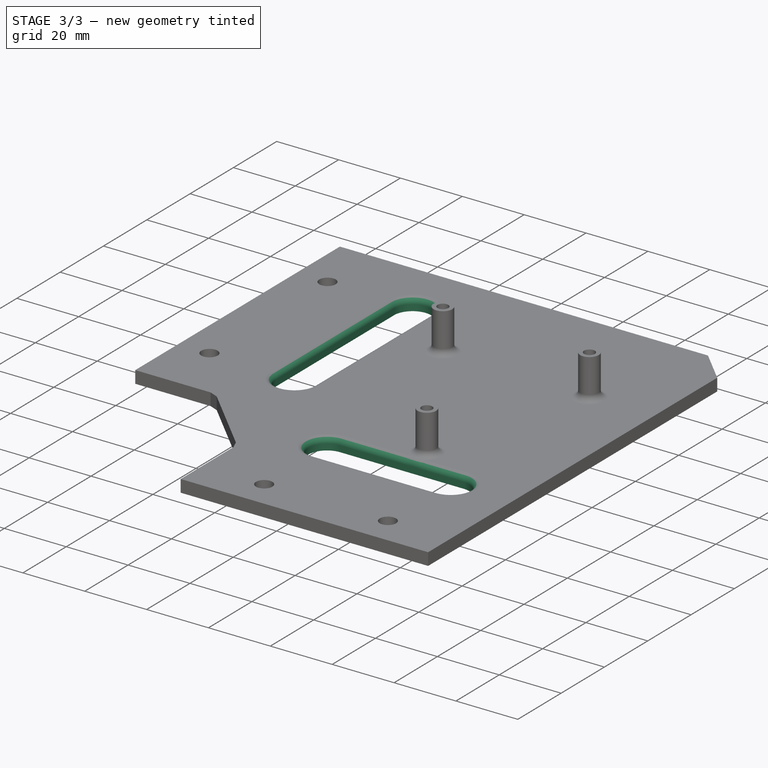
[diagram: stage 3 of 3 — iso view after this stage's code; geometry added in this stage tinted green]
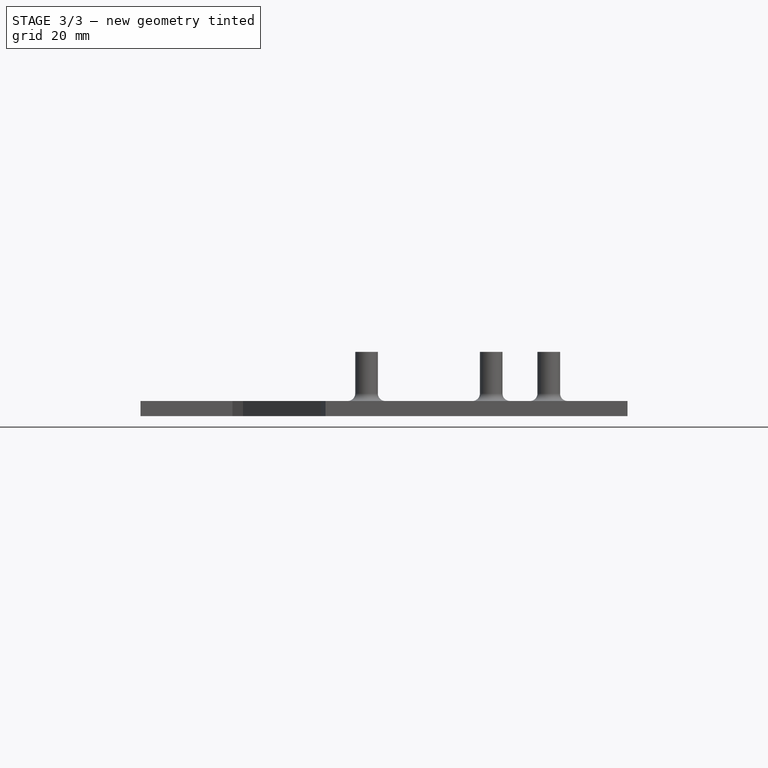
[diagram: stage 3 of 3 — front view after this stage's code; geometry added in this stage tinted green]
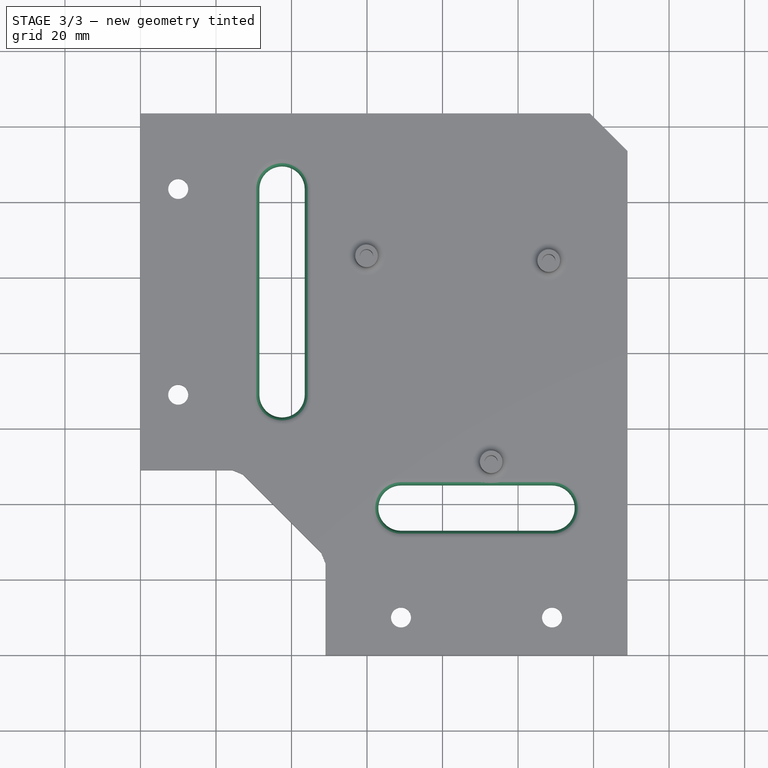
[diagram: stage 3 of 3 — top view after this stage's code; geometry added in this stage tinted green]
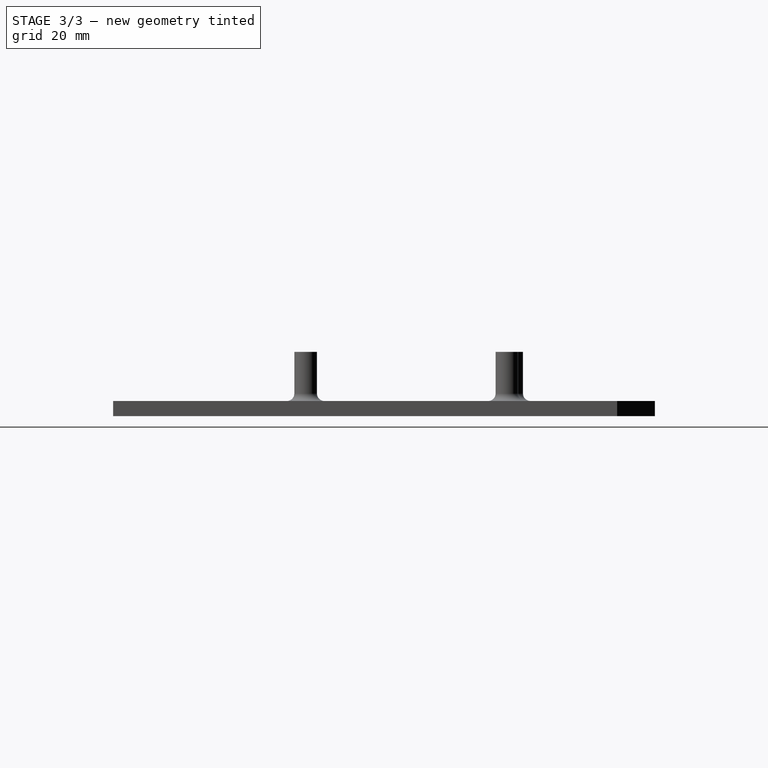
[diagram: stage 3 of 3 — right view after this stage's code; geometry added in this stage tinted green]
FEATURE [PartDesign::Pocket] Pocket
  BaseFeature = -> Fillet
  Direction = (0,0,-1)
  Length = 5
  Length2 = 5
  Profile = -> Sketch003
  ReferenceAxis = -> Sketch003 [N_Axis]
  Refine = true
  Suppressed = false
  Type = 0
FEATURE [PartDesign::Fillet] Fillet001
  Base = -> Pocket [Edge20,Edge16]
  BaseFeature = -> Pocket
  Radius = 2
  Refine = true
  SupportTransform = false
  Suppressed = false
  UseAllEdges = false
FEATURE [PartDesign::Body] Body
  AllowCompound = false
  Group = -> [Sketch,Pad,Sketch001,Pad001,Sketch002,Chamfer,Sketch003,Fillet,Pocket,Fillet001]
  Origin = -> Origin
  Tip = -> Fillet001
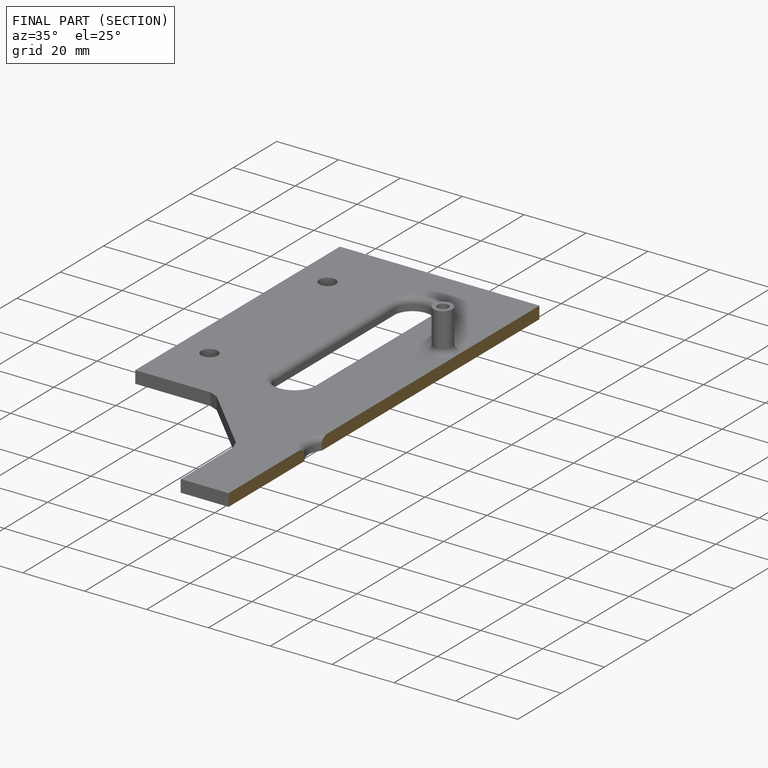
[diagram: finished part — half-section view (interior)]
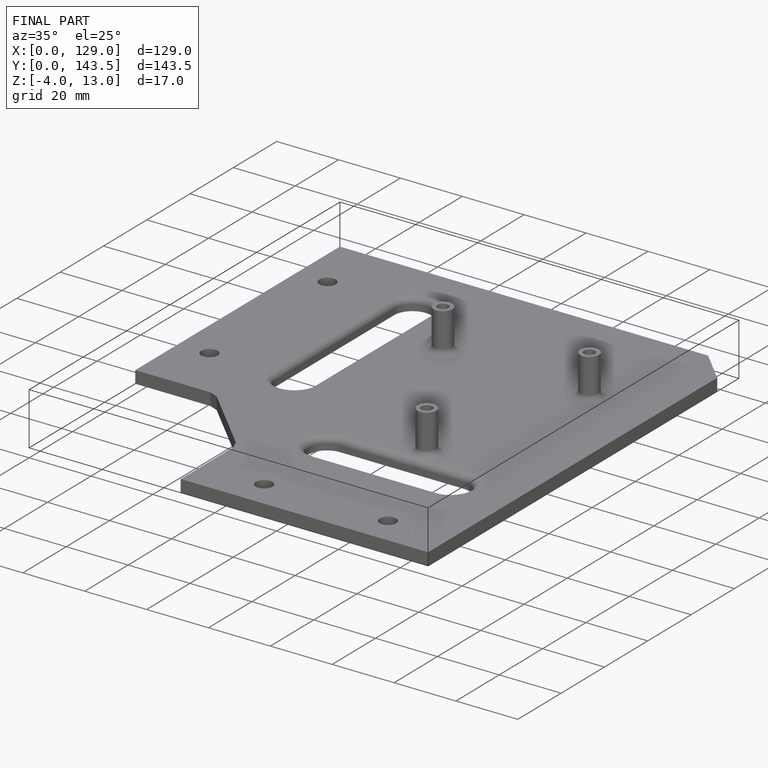
[diagram: finished part — iso view with bounding-box wireframe]
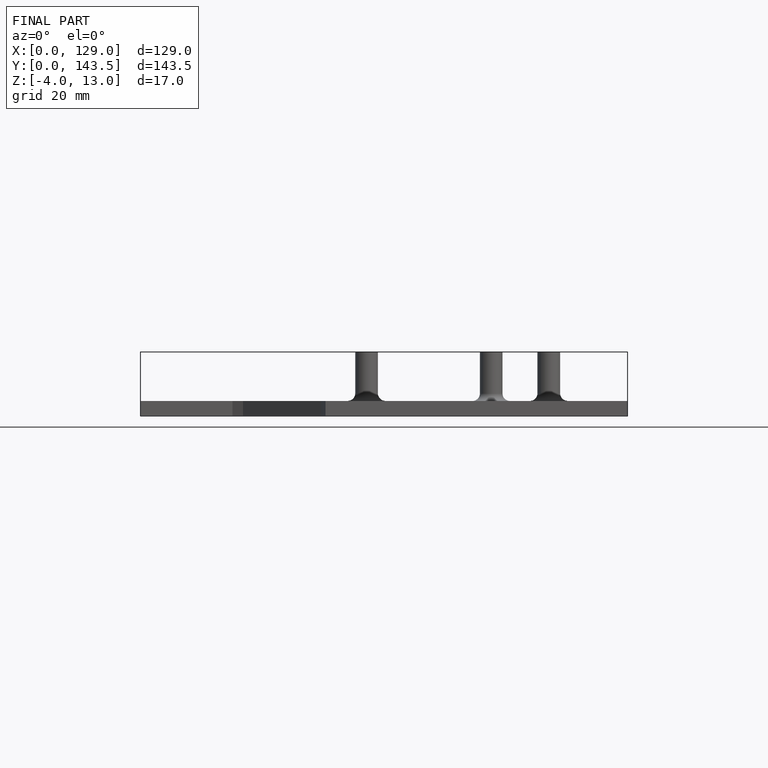
[diagram: finished part — front view with bounding-box wireframe]
